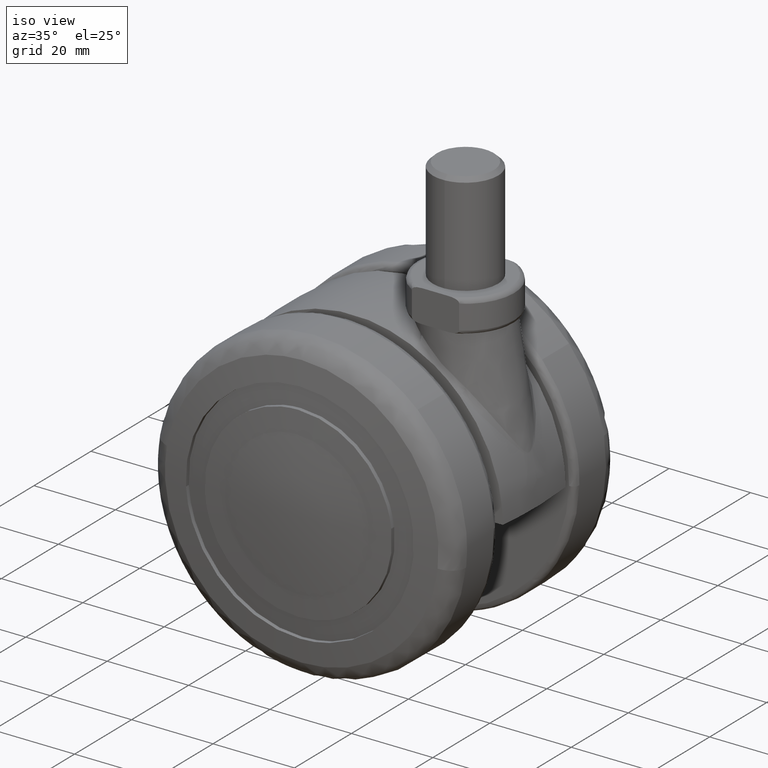
[diagram: clean part render]
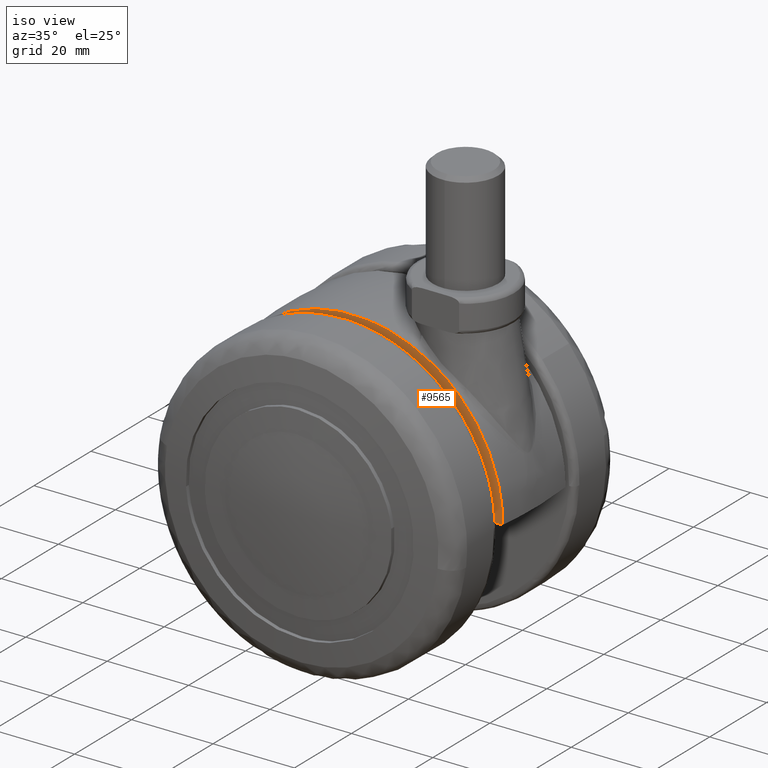
[diagram: same view with one face highlighted and labeled with its STEP entity id]
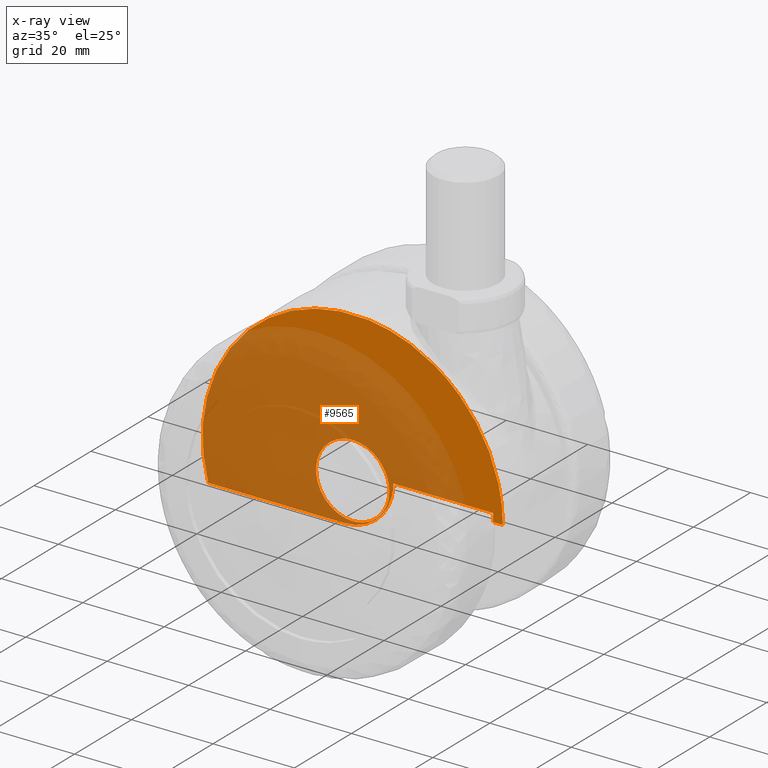
[diagram: x-ray of the same camera — body ghosted, the highlighted face saturated]
A machine part, iso view. The second image highlights one B-rep face of the part: STEP entity #9565.
The next image is the same camera in x-ray: the body ghosted, the highlighted face saturated — about 75% of this face is hidden behind the body in this view.
In plain terms, the highlighted face is a freeform B-spline surface patch.
Its self-contained STEP definition (entity closure, byte-faithful):
#7527=CARTESIAN_POINT('',(9.0,-11.000000004442990,2.233753E-013));
#7528=VERTEX_POINT('',#7527);
#7542=CARTESIAN_POINT('',(0.0,-11.0,9.0));
#7543=VERTEX_POINT('',#7542);
#7544=CARTESIAN_POINT('',(0.0,-11.0,9.0));
#7545=CARTESIAN_POINT('',(8.999999999999558,-11.0,9.0));
#7546=CARTESIAN_POINT('',(8.999999999999998,-11.000000004442995,2.233753E-013));
#7554=(BOUNDED_CURVE()B_SPLINE_CURVE(2,(#7544,#7545,#7546),.UNSPECIFIED.,.F.,.U.)B_SPLINE_CURVE_WITH_KNOTS((3,3),(0.0,0.249999999999991),.UNSPECIFIED.)CURVE()GEOMETRIC_REPRESENTATION_ITEM()RATIONAL_B_SPLINE_CURVE((1.0,0.707106781186558,0.999999999999980))REPRESENTATION_ITEM(''));
#7555=EDGE_CURVE('',#7543,#7528,#7554,.T.);
#7557=CARTESIAN_POINT('',(-8.939804749009788,-11.000000004269220,-1.039178064424962));
#7558=VERTEX_POINT('',#7557);
#7559=CARTESIAN_POINT('',(-8.939804749009788,-11.000000004269225,-1.039178064424962));
#7560=CARTESIAN_POINT('',(-9.0,-11.000000000000004,-0.521332462367056));
#7561=CARTESIAN_POINT('',(-9.0,-11.0,0.0));
#7562=CARTESIAN_POINT('',(-9.0,-11.0,9.0));
#7563=CARTESIAN_POINT('',(0.0,-11.0,9.0));
#7571=(BOUNDED_CURVE()B_SPLINE_CURVE(2,(#7559,#7560,#7561,#7562,#7563),.UNSPECIFIED.,.F.,.U.)B_SPLINE_CURVE_WITH_KNOTS((3,2,3),(0.729999999981786,0.750000000000000,1.0),.UNSPECIFIED.)CURVE()GEOMETRIC_REPRESENTATION_ITEM()RATIONAL_B_SPLINE_CURVE((0.956886118154811,0.976568542473585,1.0,0.707106781186547,1.0))REPRESENTATION_ITEM(''));
#7572=EDGE_CURVE('',#7558,#7543,#7571,.T.);
#7629=CARTESIAN_POINT('',(0.0,-11.0,-9.0));
#7630=VERTEX_POINT('',#7629);
#7631=CARTESIAN_POINT('',(0.0,-11.0,-9.0));
#7632=CARTESIAN_POINT('',(-8.014425306573768,-11.0,-9.0));
#7633=CARTESIAN_POINT('',(-8.939804749009790,-11.000000004269218,-1.039178064424962));
#7641=(BOUNDED_CURVE()B_SPLINE_CURVE(2,(#7631,#7632,#7633),.UNSPECIFIED.,.F.,.U.)B_SPLINE_CURVE_WITH_KNOTS((3,3),(0.500000000000000,0.729999999981787),.UNSPECIFIED.)CURVE()GEOMETRIC_REPRESENTATION_ITEM()RATIONAL_B_SPLINE_CURVE((1.0,0.730538238712962,0.956886118154812))REPRESENTATION_ITEM(''));
#7642=EDGE_CURVE('',#7630,#7558,#7641,.T.);
#7644=CARTESIAN_POINT('',(8.999999999999998,-11.000000004442986,2.233753E-013));
#7645=CARTESIAN_POINT('',(9.000000000000448,-11.0,-9.000000000000002));
#7646=CARTESIAN_POINT('',(0.0,-11.0,-9.0));
#7654=(BOUNDED_CURVE()B_SPLINE_CURVE(2,(#7644,#7645,#7646),.UNSPECIFIED.,.F.,.U.)B_SPLINE_CURVE_WITH_KNOTS((3,3),(0.249999999999991,0.500000000000000),.UNSPECIFIED.)CURVE()GEOMETRIC_REPRESENTATION_ITEM()RATIONAL_B_SPLINE_CURVE((1.000000000000021,0.707106781186537,1.0))REPRESENTATION_ITEM(''));
#7655=EDGE_CURVE('',#7528,#7630,#7654,.T.);
#7679=CARTESIAN_POINT('',(34.500000000000000,-11.0,2.0));
#7680=VERTEX_POINT('',#7679);
#7681=CARTESIAN_POINT('',(34.500000000000000,-11.0,0.0));
#7682=VERTEX_POINT('',#7681);
#7683=CARTESIAN_POINT('',(34.500000000000000,-11.0,2.0));
#7684=CARTESIAN_POINT('',(34.500000000000000,-11.0,0.0));
#7685=QUASI_UNIFORM_CURVE('',1,(#7683,#7684),.UNSPECIFIED.,.F.,.U.);
#7686=EDGE_CURVE('',#7680,#7682,#7685,.T.);
#7724=CARTESIAN_POINT('',(-2.0,-11.000000373584919,-10.0));
#7725=VERTEX_POINT('',#7724);
#7726=CARTESIAN_POINT('',(10.0,-11.0,2.0));
#7727=VERTEX_POINT('',#7726);
#7728=CARTESIAN_POINT('',(-2.0,-11.000000373584919,-10.0));
#7729=CARTESIAN_POINT('',(10.000000000000002,-11.0,-10.000000000000002));
#7730=CARTESIAN_POINT('',(10.0,-11.0,2.0));
#7738=(BOUNDED_CURVE()B_SPLINE_CURVE(2,(#7728,#7729,#7730),.UNSPECIFIED.,.F.,.U.)CURVE()GEOMETRIC_REPRESENTATION_ITEM()QUASI_UNIFORM_CURVE()RATIONAL_B_SPLINE_CURVE((1.0,0.707106781186548,1.0))REPRESENTATION_ITEM(''));
#7739=EDGE_CURVE('',#7725,#7727,#7738,.T.);
#7776=CARTESIAN_POINT('',(10.0,-11.0,2.0));
#7777=CARTESIAN_POINT('',(34.500000000000000,-11.0,2.0));
#7778=QUASI_UNIFORM_CURVE('',1,(#7776,#7777),.UNSPECIFIED.,.F.,.U.);
#7779=EDGE_CURVE('',#7727,#7680,#7778,.T.);
#7804=CARTESIAN_POINT('',(36.893158635603612,-11.0,0.0));
#7805=VERTEX_POINT('',#7804);
#7819=CARTESIAN_POINT('',(34.500000000000000,-11.0,0.0));
#7820=CARTESIAN_POINT('',(36.893158635603612,-11.0,0.0));
#7821=QUASI_UNIFORM_CURVE('',1,(#7819,#7820),.UNSPECIFIED.,.F.,.U.);
#7822=EDGE_CURVE('',#7682,#7805,#7821,.T.);
#8040=CARTESIAN_POINT('',(14.201734361932120,-11.000000747169860,34.050196698770002));
#8041=VERTEX_POINT('',#8040);
#8438=CARTESIAN_POINT('',(26.326556427968750,-11.000000747169860,25.846036074353648));
#8439=VERTEX_POINT('',#8438);
#8491=CARTESIAN_POINT('',(14.201734361932131,-11.000000747169860,34.050196698770023));
#8492=CARTESIAN_POINT('',(21.094531407281323,-11.000000747169860,31.175333052173361));
#8493=CARTESIAN_POINT('',(26.326556427968750,-11.000000747169860,25.846036074353659));
#8501=(BOUNDED_CURVE()B_SPLINE_CURVE(2,(#8491,#8492,#8493),.UNSPECIFIED.,.F.,.U.)CURVE()GEOMETRIC_REPRESENTATION_ITEM()QUASI_UNIFORM_CURVE()RATIONAL_B_SPLINE_CURVE((1.0,0.980119895861786,1.0))REPRESENTATION_ITEM(''));
#8502=EDGE_CURVE('',#8041,#8439,#8501,.T.);
#9406=CARTESIAN_POINT('',(-35.512042381589552,-11.000000747169860,-10.0));
#9407=VERTEX_POINT('',#9406);
#9424=CARTESIAN_POINT('',(-35.512042381589552,-11.000000747169860,-10.000000000000030));
#9425=CARTESIAN_POINT('',(-41.783029534465193,-11.000000747169860,12.269556154732223));
#9426=CARTESIAN_POINT('',(-24.467064888810270,-11.000000747169860,27.612821113362550));
#9427=CARTESIAN_POINT('',(-7.151100243155345,-11.000000747169860,42.956086071992878));
#9428=CARTESIAN_POINT('',(14.201734361932120,-11.000000747169860,34.050196698770030));
#9436=(BOUNDED_CURVE()B_SPLINE_CURVE(2,(#9424,#9425,#9426,#9427,#9428),.UNSPECIFIED.,.F.,.U.)B_SPLINE_CURVE_WITH_KNOTS((3,2,3),(0.0,0.500000000000000,1.0),.UNSPECIFIED.)CURVE()GEOMETRIC_REPRESENTATION_ITEM()RATIONAL_B_SPLINE_CURVE((1.0,0.847198226455117,1.0,0.847198226455117,1.0))REPRESENTATION_ITEM(''));
#9437=EDGE_CURVE('',#9407,#8041,#9436,.T.);
#9489=CARTESIAN_POINT('',(-35.512042381589552,-11.000000747169860,-10.0));
#9490=CARTESIAN_POINT('',(-2.0,-11.000000373584919,-10.0));
#9491=QUASI_UNIFORM_CURVE('',1,(#9489,#9490),.UNSPECIFIED.,.F.,.U.);
#9492=EDGE_CURVE('',#9407,#7725,#9491,.T.);
#9532=CARTESIAN_POINT('',(-40.567409986314672,-11.000000373584919,39.226319484525511));
#9533=CARTESIAN_POINT('',(-40.567409986314672,-11.000000373584919,-12.341879029103129));
#9534=CARTESIAN_POINT('',(40.578245864882497,-11.000000373584919,39.226319484525511));
#9535=CARTESIAN_POINT('',(40.578245864882497,-11.000000373584919,-12.341879029103129));
#9536=B_SPLINE_SURFACE_WITH_KNOTS('',1,1,((#9532,#9534),(#9533,#9535)),.UNSPECIFIED.,.F.,.F.,.U.,(2,2),(2,2),(0.0,51.568198513628637),(0.0,81.145655851197176),.UNSPECIFIED.);
#9537=ORIENTED_EDGE('',*,*,#9492,.T.);
#9538=ORIENTED_EDGE('',*,*,#7739,.T.);
#9539=ORIENTED_EDGE('',*,*,#7779,.T.);
#9540=ORIENTED_EDGE('',*,*,#7686,.T.);
#9541=ORIENTED_EDGE('',*,*,#7822,.T.);
#9542=CARTESIAN_POINT('',(26.326556427968750,-11.000000747169860,25.846036074353659));
#9543=CARTESIAN_POINT('',(36.893158635603598,-11.000000747169860,15.082983338880958));
#9544=CARTESIAN_POINT('',(36.893158635603612,-11.0,0.0));
#9552=(BOUNDED_CURVE()B_SPLINE_CURVE(2,(#9542,#9543,#9544),.UNSPECIFIED.,.F.,.U.)CURVE()GEOMETRIC_REPRESENTATION_ITEM()QUASI_UNIFORM_CURVE()RATIONAL_B_SPLINE_CURVE((1.0,0.925631977409736,1.0))REPRESENTATION_ITEM(''));
#9553=EDGE_CURVE('',#8439,#7805,#9552,.T.);
#9554=ORIENTED_EDGE('',*,*,#9553,.F.);
#9555=ORIENTED_EDGE('',*,*,#8502,.F.);
#9556=ORIENTED_EDGE('',*,*,#9437,.F.);
#9557=EDGE_LOOP('',(#9537,#9538,#9539,#9540,#9541,#9554,#9555,#9556));
#9558=FACE_OUTER_BOUND('',#9557,.T.);
#9559=ORIENTED_EDGE('',*,*,#7555,.T.);
#9560=ORIENTED_EDGE('',*,*,#7655,.T.);
#9561=ORIENTED_EDGE('',*,*,#7642,.T.);
#9562=ORIENTED_EDGE('',*,*,#7572,.T.);
#9563=EDGE_LOOP('',(#9559,#9560,#9561,#9562));
#9564=FACE_BOUND('',#9563,.T.);
#9565=ADVANCED_FACE('',(#9558,#9564),#9536,.T.);